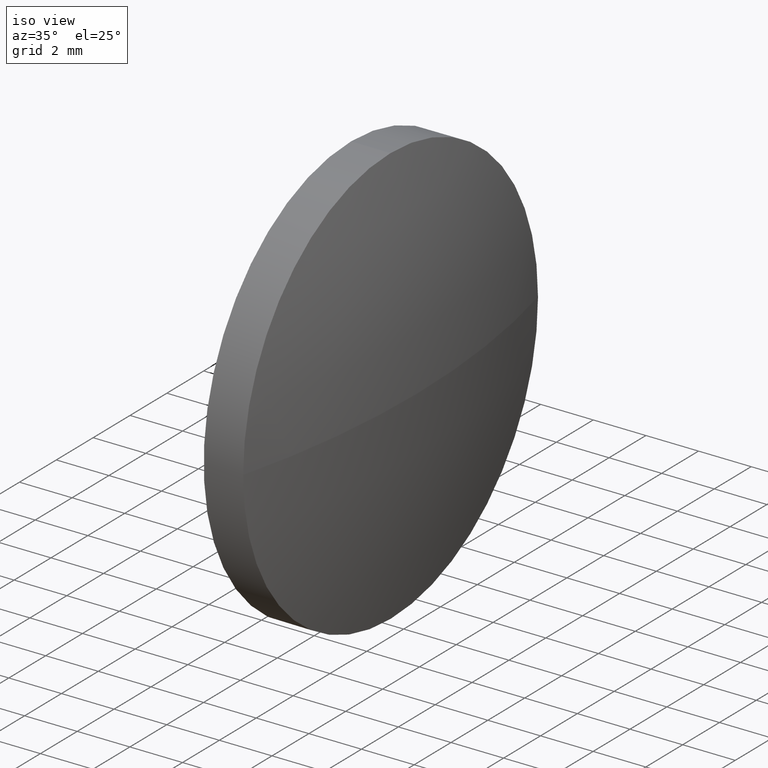
[diagram: clean part render]
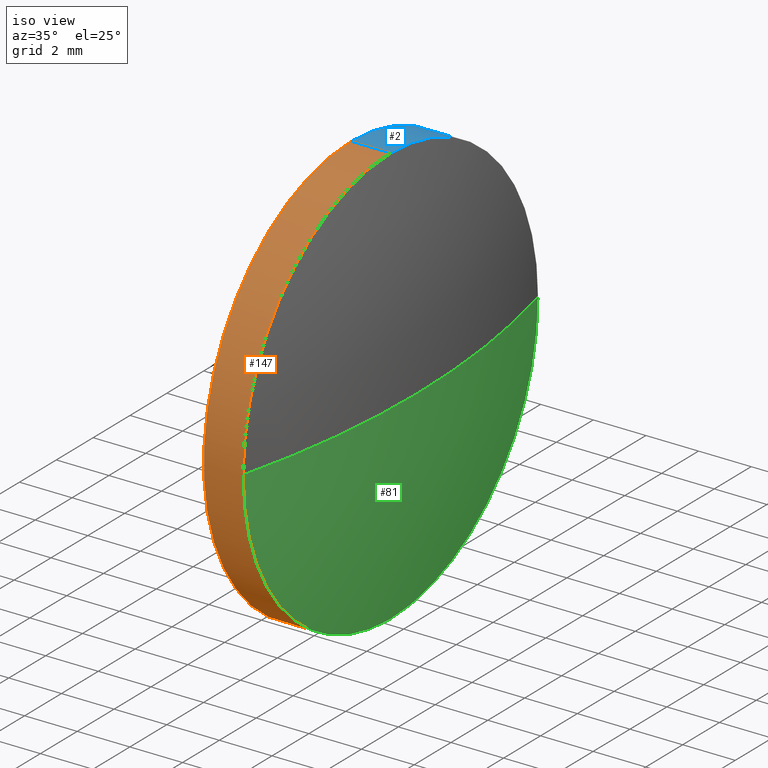
[diagram: same view with three faces highlighted in distinct colors, each labeled with its STEP entity id]
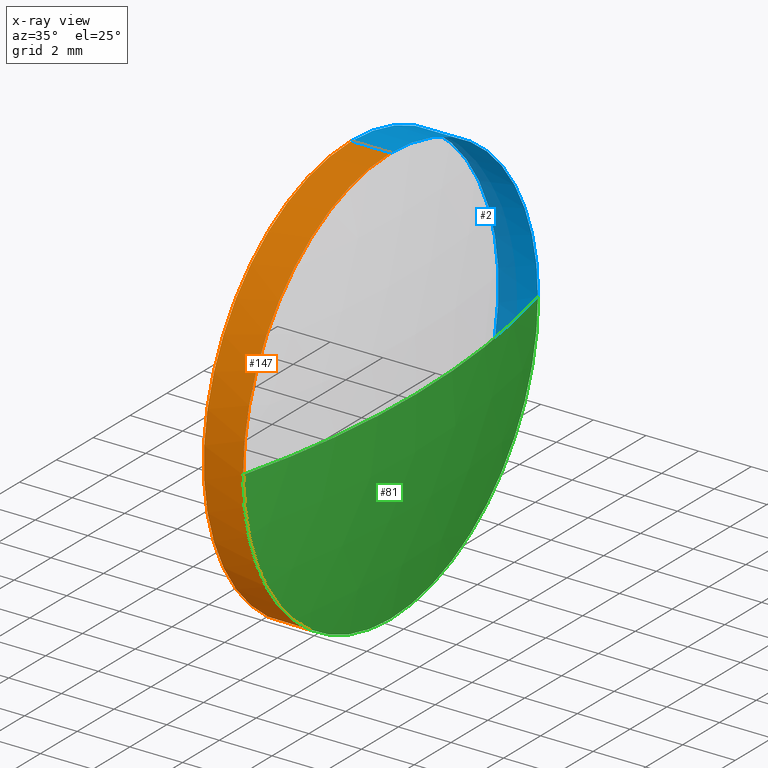
[diagram: x-ray of the same camera — body ghosted, the three highlighted faces saturated]
A machine part, iso view with three faces highlighted in distinct colors.
The next image is the same camera in x-ray (body ghosted, the three faces saturated) — at least one of them is partly hidden behind the body in this view.
Their STEP definitions:

[orange] entity #147 — the highlighted cylindrical surface (partial cylindrical patch) has radius 8 mm, axis along (-1, -0, -0).
#1 = VECTOR ( 'NONE', #8, 1000.000000000000000 ) ;
#6 = DIRECTION ( 'NONE',  ( -1.000000000000000000, -0.0000000000000000000, -0.0000000000000000000 ) ) ;
#8 = DIRECTION ( 'NONE',  ( -1.000000000000000000, -0.0000000000000000000, -0.0000000000000000000 ) ) ;
#11 = CIRCLE ( 'NONE', #164, 7.999999999999992900 ) ;
#20 = EDGE_LOOP ( 'NONE', ( #68, #60, #161, #109, #168 ) ) ;
#25 = CARTESIAN_POINT ( 'NONE',  ( 522.2374810103676700, 67.77708632238261500, 7.999999999999992900 ) ) ;
#37 = CARTESIAN_POINT ( 'NONE',  ( 525.6602977152133500, 59.77708632238271500, 0.0000000000000000000 ) ) ;
#38 = DIRECTION ( 'NONE',  ( -1.000000000000000000, -0.0000000000000000000, -0.0000000000000000000 ) ) ;
#40 = VERTEX_POINT ( 'NONE', #96 ) ;
#41 = CARTESIAN_POINT ( 'NONE',  ( 522.2374810103676700, 67.77708632238261500, 0.0000000000000000000 ) ) ;
#50 = EDGE_CURVE ( 'NONE', #162, #138, #148, .T. ) ;
#54 = DIRECTION ( 'NONE',  ( 0.0000000000000000000, 0.0000000000000000000, 1.000000000000000000 ) ) ;
#59 = FACE_OUTER_BOUND ( 'NONE', #20, .T. ) ;
#60 = ORIENTED_EDGE ( 'NONE', *, *, #79, .T. ) ;
#64 = VECTOR ( 'NONE', #6, 1000.000000000000000 ) ;
#65 = EDGE_CURVE ( 'NONE', #40, #146, #99, .T. ) ;
#68 = ORIENTED_EDGE ( 'NONE', *, *, #50, .F. ) ;
#79 = EDGE_CURVE ( 'NONE', #162, #105, #93, .T. ) ;
#84 = CARTESIAN_POINT ( 'NONE',  ( 522.2374810103676700, 67.77708632238261500, -7.999999999999992900 ) ) ;
#89 = CARTESIAN_POINT ( 'NONE',  ( 525.6602977152133500, 67.77708632238261500, -7.999999999999992900 ) ) ;
#91 = CARTESIAN_POINT ( 'NONE',  ( 524.1602977152133500, 67.77708632238261500, 0.0000000000000000000 ) ) ;
#93 = CIRCLE ( 'NONE', #173, 7.999999999999992900 ) ;
#96 = CARTESIAN_POINT ( 'NONE',  ( 525.6602977152133500, 67.77708632238261500, 7.999999999999992900 ) ) ;
#99 = LINE ( 'NONE', #25, #1 ) ;
#102 = EDGE_CURVE ( 'NONE', #105, #40, #11, .T. ) ;
#105 = VERTEX_POINT ( 'NONE', #37 ) ;
#107 = CYLINDRICAL_SURFACE ( 'NONE', #122, 7.999999999999992900 ) ;
#109 = ORIENTED_EDGE ( 'NONE', *, *, #65, .T. ) ;
#112 = DIRECTION ( 'NONE',  ( -1.000000000000000000, -0.0000000000000000000, -0.0000000000000000000 ) ) ;
#114 = CARTESIAN_POINT ( 'NONE',  ( 524.1602977152133500, 67.77708632238261500, 7.999999999999992900 ) ) ;
#117 = DIRECTION ( 'NONE',  ( -1.000000000000000000, -0.0000000000000000000, -0.0000000000000000000 ) ) ;
#122 = AXIS2_PLACEMENT_3D ( 'NONE', #41, #117, #142 ) ;
#126 = CARTESIAN_POINT ( 'NONE',  ( 525.6602977152133500, 67.77708632238261500, 0.0000000000000000000 ) ) ;
#135 = EDGE_CURVE ( 'NONE', #138, #146, #175, .T. ) ;
#138 = VERTEX_POINT ( 'NONE', #165 ) ;
#139 = AXIS2_PLACEMENT_3D ( 'NONE', #91, #141, #184 ) ;
#141 = DIRECTION ( 'NONE',  ( -1.000000000000000000, -0.0000000000000000000, -0.0000000000000000000 ) ) ;
#142 = DIRECTION ( 'NONE',  ( 0.0000000000000000000, 0.0000000000000000000, 1.000000000000000000 ) ) ;
#146 = VERTEX_POINT ( 'NONE', #114 ) ;
#147 = ADVANCED_FACE ( 'NONE', ( #59 ), #107, .T. ) ;
#148 = LINE ( 'NONE', #84, #64 ) ;
#161 = ORIENTED_EDGE ( 'NONE', *, *, #102, .T. ) ;
#162 = VERTEX_POINT ( 'NONE', #89 ) ;
#164 = AXIS2_PLACEMENT_3D ( 'NONE', #126, #38, #54 ) ;
#165 = CARTESIAN_POINT ( 'NONE',  ( 524.1602977152133500, 67.77708632238261500, -7.999999999999992900 ) ) ;
#168 = ORIENTED_EDGE ( 'NONE', *, *, #135, .F. ) ;
#173 = AXIS2_PLACEMENT_3D ( 'NONE', #179, #112, #178 ) ;
#175 = CIRCLE ( 'NONE', #139, 7.999999999999992900 ) ;
#178 = DIRECTION ( 'NONE',  ( 0.0000000000000000000, 0.0000000000000000000, 1.000000000000000000 ) ) ;
#179 = CARTESIAN_POINT ( 'NONE',  ( 525.6602977152133500, 67.77708632238261500, 0.0000000000000000000 ) ) ;
#184 = DIRECTION ( 'NONE',  ( 0.0000000000000000000, 0.0000000000000000000, 1.000000000000000000 ) ) ;

[blue] entity #2 — the highlighted cylindrical surface (partial cylindrical patch) has radius 8 mm, axis along (-1, -0, -0).
#1 = VECTOR ( 'NONE', #8, 1000.000000000000000 ) ;
#2 = ADVANCED_FACE ( 'NONE', ( #128 ), #160, .T. ) ;
#6 = DIRECTION ( 'NONE',  ( -1.000000000000000000, -0.0000000000000000000, -0.0000000000000000000 ) ) ;
#7 = AXIS2_PLACEMENT_3D ( 'NONE', #171, #61, #44 ) ;
#8 = DIRECTION ( 'NONE',  ( -1.000000000000000000, -0.0000000000000000000, -0.0000000000000000000 ) ) ;
#9 = EDGE_CURVE ( 'NONE', #106, #162, #67, .T. ) ;
#15 = ORIENTED_EDGE ( 'NONE', *, *, #9, .T. ) ;
#19 = AXIS2_PLACEMENT_3D ( 'NONE', #69, #152, #72 ) ;
#25 = CARTESIAN_POINT ( 'NONE',  ( 522.2374810103676700, 67.77708632238261500, 7.999999999999992900 ) ) ;
#29 = ORIENTED_EDGE ( 'NONE', *, *, #50, .T. ) ;
#40 = VERTEX_POINT ( 'NONE', #96 ) ;
#44 = DIRECTION ( 'NONE',  ( 0.0000000000000000000, 0.0000000000000000000, 1.000000000000000000 ) ) ;
#46 = ORIENTED_EDGE ( 'NONE', *, *, #186, .T. ) ;
#50 = EDGE_CURVE ( 'NONE', #162, #138, #148, .T. ) ;
#51 = DIRECTION ( 'NONE',  ( 0.0000000000000000000, 0.0000000000000000000, 1.000000000000000000 ) ) ;
#53 = DIRECTION ( 'NONE',  ( -1.000000000000000000, -0.0000000000000000000, -0.0000000000000000000 ) ) ;
#61 = DIRECTION ( 'NONE',  ( -1.000000000000000000, -0.0000000000000000000, -0.0000000000000000000 ) ) ;
#62 = EDGE_CURVE ( 'NONE', #146, #138, #115, .T. ) ;
#64 = VECTOR ( 'NONE', #6, 1000.000000000000000 ) ;
#65 = EDGE_CURVE ( 'NONE', #40, #146, #99, .T. ) ;
#67 = CIRCLE ( 'NONE', #19, 7.999999999999992900 ) ;
#69 = CARTESIAN_POINT ( 'NONE',  ( 525.6602977152133500, 67.77708632238261500, 0.0000000000000000000 ) ) ;
#70 = DIRECTION ( 'NONE',  ( 0.0000000000000000000, 0.0000000000000000000, 1.000000000000000000 ) ) ;
#72 = DIRECTION ( 'NONE',  ( 0.0000000000000000000, 0.0000000000000000000, 1.000000000000000000 ) ) ;
#84 = CARTESIAN_POINT ( 'NONE',  ( 522.2374810103676700, 67.77708632238261500, -7.999999999999992900 ) ) ;
#89 = CARTESIAN_POINT ( 'NONE',  ( 525.6602977152133500, 67.77708632238261500, -7.999999999999992900 ) ) ;
#94 = AXIS2_PLACEMENT_3D ( 'NONE', #166, #180, #51 ) ;
#96 = CARTESIAN_POINT ( 'NONE',  ( 525.6602977152133500, 67.77708632238261500, 7.999999999999992900 ) ) ;
#97 = EDGE_LOOP ( 'NONE', ( #15, #29, #176, #154, #46 ) ) ;
#98 = CARTESIAN_POINT ( 'NONE',  ( 525.6602977152133500, 75.77708632238267200, 9.797174393178705400E-016 ) ) ;
#99 = LINE ( 'NONE', #25, #1 ) ;
#106 = VERTEX_POINT ( 'NONE', #98 ) ;
#113 = CIRCLE ( 'NONE', #7, 7.999999999999992900 ) ;
#114 = CARTESIAN_POINT ( 'NONE',  ( 524.1602977152133500, 67.77708632238261500, 7.999999999999992900 ) ) ;
#115 = CIRCLE ( 'NONE', #94, 7.999999999999992900 ) ;
#128 = FACE_OUTER_BOUND ( 'NONE', #97, .T. ) ;
#131 = AXIS2_PLACEMENT_3D ( 'NONE', #149, #53, #70 ) ;
#138 = VERTEX_POINT ( 'NONE', #165 ) ;
#146 = VERTEX_POINT ( 'NONE', #114 ) ;
#148 = LINE ( 'NONE', #84, #64 ) ;
#149 = CARTESIAN_POINT ( 'NONE',  ( 522.2374810103676700, 67.77708632238261500, 0.0000000000000000000 ) ) ;
#152 = DIRECTION ( 'NONE',  ( -1.000000000000000000, -0.0000000000000000000, -0.0000000000000000000 ) ) ;
#154 = ORIENTED_EDGE ( 'NONE', *, *, #65, .F. ) ;
#160 = CYLINDRICAL_SURFACE ( 'NONE', #131, 7.999999999999992900 ) ;
#162 = VERTEX_POINT ( 'NONE', #89 ) ;
#165 = CARTESIAN_POINT ( 'NONE',  ( 524.1602977152133500, 67.77708632238261500, -7.999999999999992900 ) ) ;
#166 = CARTESIAN_POINT ( 'NONE',  ( 524.1602977152133500, 67.77708632238261500, 0.0000000000000000000 ) ) ;
#171 = CARTESIAN_POINT ( 'NONE',  ( 525.6602977152133500, 67.77708632238261500, 0.0000000000000000000 ) ) ;
#176 = ORIENTED_EDGE ( 'NONE', *, *, #62, .F. ) ;
#180 = DIRECTION ( 'NONE',  ( -1.000000000000000000, -0.0000000000000000000, -0.0000000000000000000 ) ) ;
#186 = EDGE_CURVE ( 'NONE', #40, #106, #113, .T. ) ;

[green] entity #81 — the highlighted spherical surface has radius 32.5 mm.
#3 = AXIS2_PLACEMENT_3D ( 'NONE', #127, #110, #22 ) ;
#4 = AXIS2_PLACEMENT_3D ( 'NONE', #157, #144, #39 ) ;
#9 = EDGE_CURVE ( 'NONE', #106, #162, #67, .T. ) ;
#18 = SPHERICAL_SURFACE ( 'NONE', #3, 32.50000000000001400 ) ;
#19 = AXIS2_PLACEMENT_3D ( 'NONE', #69, #152, #72 ) ;
#21 = ORIENTED_EDGE ( 'NONE', *, *, #150, .T. ) ;
#22 = DIRECTION ( 'NONE',  ( 0.0000000000000000000, -1.000000000000000000, 0.0000000000000000000 ) ) ;
#27 = CARTESIAN_POINT ( 'NONE',  ( 526.6602977152133500, 67.77708632238275800, 0.0000000000000000000 ) ) ;
#36 = FACE_OUTER_BOUND ( 'NONE', #169, .T. ) ;
#37 = CARTESIAN_POINT ( 'NONE',  ( 525.6602977152133500, 59.77708632238271500, 0.0000000000000000000 ) ) ;
#39 = DIRECTION ( 'NONE',  ( 0.0000000000000000000, -1.000000000000000000, -1.224646799147353500E-016 ) ) ;
#67 = CIRCLE ( 'NONE', #19, 7.999999999999992900 ) ;
#69 = CARTESIAN_POINT ( 'NONE',  ( 525.6602977152133500, 67.77708632238261500, 0.0000000000000000000 ) ) ;
#72 = DIRECTION ( 'NONE',  ( 0.0000000000000000000, 0.0000000000000000000, 1.000000000000000000 ) ) ;
#75 = DIRECTION ( 'NONE',  ( 0.0000000000000000000, 0.0000000000000000000, -1.000000000000000000 ) ) ;
#79 = EDGE_CURVE ( 'NONE', #162, #105, #93, .T. ) ;
#81 = ADVANCED_FACE ( 'NONE', ( #36 ), #18, .T. ) ;
#83 = ORIENTED_EDGE ( 'NONE', *, *, #79, .F. ) ;
#89 = CARTESIAN_POINT ( 'NONE',  ( 525.6602977152133500, 67.77708632238261500, -7.999999999999992900 ) ) ;
#90 = ORIENTED_EDGE ( 'NONE', *, *, #119, .F. ) ;
#93 = CIRCLE ( 'NONE', #173, 7.999999999999992900 ) ;
#95 = CIRCLE ( 'NONE', #4, 32.50000000000001400 ) ;
#98 = CARTESIAN_POINT ( 'NONE',  ( 525.6602977152133500, 75.77708632238267200, 9.797174393178705400E-016 ) ) ;
#101 = CIRCLE ( 'NONE', #163, 32.50000000000002800 ) ;
#105 = VERTEX_POINT ( 'NONE', #37 ) ;
#106 = VERTEX_POINT ( 'NONE', #98 ) ;
#110 = DIRECTION ( 'NONE',  ( 0.0000000000000000000, 0.0000000000000000000, 1.000000000000000000 ) ) ;
#112 = DIRECTION ( 'NONE',  ( -1.000000000000000000, -0.0000000000000000000, -0.0000000000000000000 ) ) ;
#118 = DIRECTION ( 'NONE',  ( -1.000000000000000000, 0.0000000000000000000, 0.0000000000000000000 ) ) ;
#119 = EDGE_CURVE ( 'NONE', #121, #106, #95, .T. ) ;
#121 = VERTEX_POINT ( 'NONE', #27 ) ;
#127 = CARTESIAN_POINT ( 'NONE',  ( 494.1602977152133500, 67.77708632238275800, 0.0000000000000000000 ) ) ;
#144 = DIRECTION ( 'NONE',  ( 0.0000000000000000000, -1.224646799147353200E-016, 1.000000000000000000 ) ) ;
#150 = EDGE_CURVE ( 'NONE', #121, #105, #101, .T. ) ;
#152 = DIRECTION ( 'NONE',  ( -1.000000000000000000, -0.0000000000000000000, -0.0000000000000000000 ) ) ;
#155 = CARTESIAN_POINT ( 'NONE',  ( 494.1602977152133500, 67.77708632238275800, 0.0000000000000000000 ) ) ;
#157 = CARTESIAN_POINT ( 'NONE',  ( 494.1602977152133500, 67.77708632238275800, 0.0000000000000000000 ) ) ;
#158 = ORIENTED_EDGE ( 'NONE', *, *, #9, .F. ) ;
#162 = VERTEX_POINT ( 'NONE', #89 ) ;
#163 = AXIS2_PLACEMENT_3D ( 'NONE', #155, #75, #118 ) ;
#169 = EDGE_LOOP ( 'NONE', ( #90, #21, #83, #158 ) ) ;
#173 = AXIS2_PLACEMENT_3D ( 'NONE', #179, #112, #178 ) ;
#178 = DIRECTION ( 'NONE',  ( 0.0000000000000000000, 0.0000000000000000000, 1.000000000000000000 ) ) ;
#179 = CARTESIAN_POINT ( 'NONE',  ( 525.6602977152133500, 67.77708632238261500, 0.0000000000000000000 ) ) ;